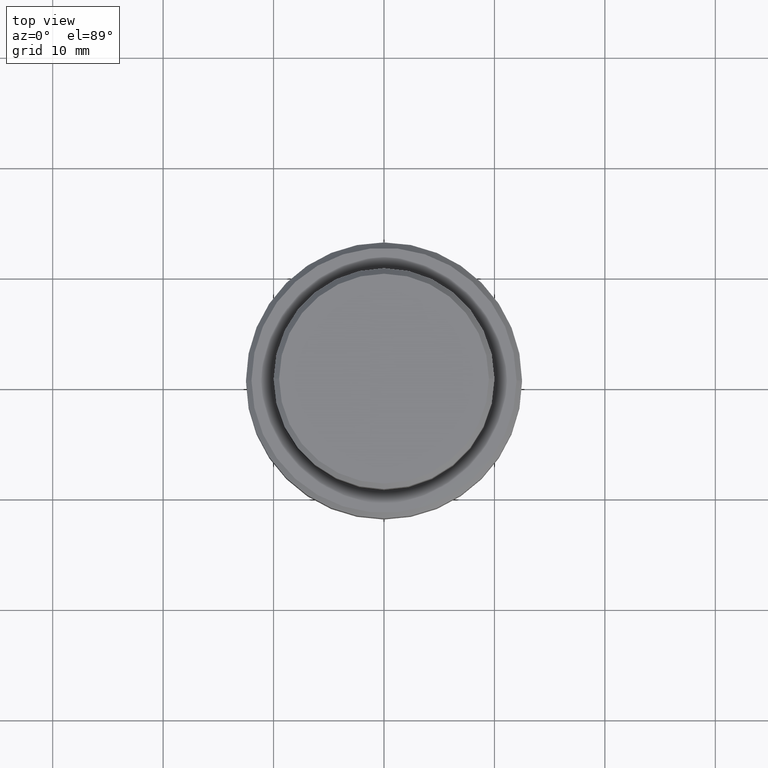
[diagram: clean part render]
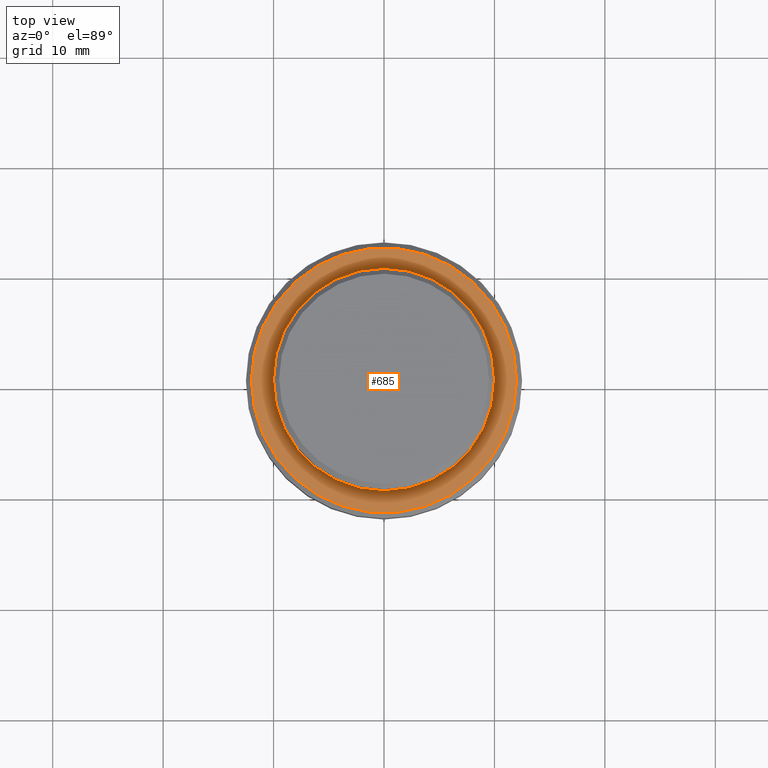
[diagram: same view with one face highlighted and labeled with its STEP entity id]
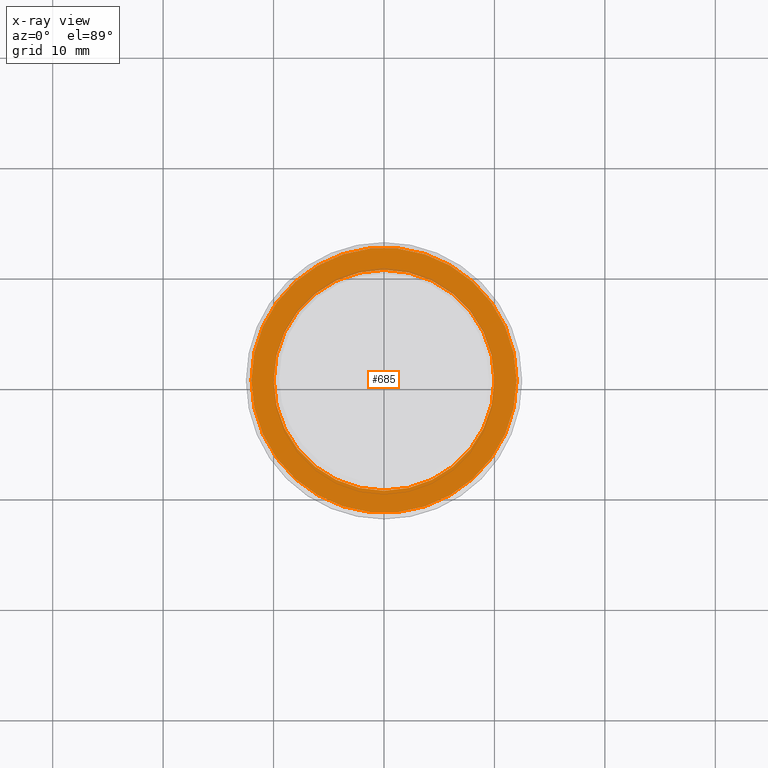
[diagram: x-ray of the same camera — body ghosted, the highlighted face saturated]
A machine part, top view. The second image highlights one B-rep face of the part: STEP entity #685.
The next image is the same camera in x-ray: the body ghosted, the highlighted face saturated — about 2% of this face is hidden behind the body in this view.
In plain terms, the highlighted planar face has unit normal (0, -0, 1).
Its self-contained STEP definition (entity closure, byte-faithful):
#8 = DIRECTION ( 'NONE',  ( 1.000000000000000000, 0.000000000000000000, 0.000000000000000000 ) ) ;
#10 = CIRCLE ( 'NONE', #801, 11.99999999999999645 ) ;
#40 = CIRCLE ( 'NONE', #229, 9.999999999999994671 ) ;
#74 = DIRECTION ( 'NONE',  ( 0.000000000000000000, 0.000000000000000000, -1.000000000000000000 ) ) ;
#77 = DIRECTION ( 'NONE',  ( 1.000000000000000000, 0.000000000000000000, 0.000000000000000000 ) ) ;
#99 = VERTEX_POINT ( 'NONE', #1054 ) ;
#147 = EDGE_CURVE ( 'NONE', #1308, #406, #10, .T. ) ;
#152 = ORIENTED_EDGE ( 'NONE', *, *, #147, .T. ) ;
#222 = CIRCLE ( 'NONE', #288, 9.999999999999994671 ) ;
#229 = AXIS2_PLACEMENT_3D ( 'NONE', #941, #495, #77 ) ;
#267 = CIRCLE ( 'NONE', #444, 11.99999999999999645 ) ;
#288 = AXIS2_PLACEMENT_3D ( 'NONE', #1172, #74, #1164 ) ;
#406 = VERTEX_POINT ( 'NONE', #560 ) ;
#444 = AXIS2_PLACEMENT_3D ( 'NONE', #1025, #1030, #484 ) ;
#453 = AXIS2_PLACEMENT_3D ( 'NONE', #889, #1417, #8 ) ;
#466 = EDGE_CURVE ( 'NONE', #99, #756, #40, .T. ) ;
#484 = DIRECTION ( 'NONE',  ( 1.000000000000000000, 0.000000000000000000, 0.000000000000000000 ) ) ;
#495 = DIRECTION ( 'NONE',  ( 0.000000000000000000, 0.000000000000000000, -1.000000000000000000 ) ) ;
#503 = CARTESIAN_POINT ( 'NONE',  ( 0.000000000000000000, 0.000000000000000000, -9.000000000000001776 ) ) ;
#522 = FACE_OUTER_BOUND ( 'NONE', #875, .T. ) ;
#536 = FACE_BOUND ( 'NONE', #1131, .T. ) ;
#560 = CARTESIAN_POINT ( 'NONE',  ( -11.99999999999999645, 0.000000000000000000, -9.000000000000001776 ) ) ;
#590 = CARTESIAN_POINT ( 'NONE',  ( 11.99999999999999645, 1.500192328955507537E-15, -9.000000000000001776 ) ) ;
#661 = CARTESIAN_POINT ( 'NONE',  ( 9.999999999999994671, 0.000000000000000000, -9.000000000000001776 ) ) ;
#685 = ADVANCED_FACE ( 'NONE', ( #522, #536 ), #976, .T. ) ;
#718 = ORIENTED_EDGE ( 'NONE', *, *, #1317, .T. ) ;
#756 = VERTEX_POINT ( 'NONE', #661 ) ;
#801 = AXIS2_PLACEMENT_3D ( 'NONE', #503, #1272, #1373 ) ;
#875 = EDGE_LOOP ( 'NONE', ( #718, #152 ) ) ;
#889 = CARTESIAN_POINT ( 'NONE',  ( 0.000000000000000000, 9.499999999999994671, -9.000000000000001776 ) ) ;
#941 = CARTESIAN_POINT ( 'NONE',  ( 0.000000000000000000, 0.000000000000000000, -9.000000000000001776 ) ) ;
#976 = PLANE ( 'NONE',  #453 ) ;
#1025 = CARTESIAN_POINT ( 'NONE',  ( 0.000000000000000000, 0.000000000000000000, -9.000000000000001776 ) ) ;
#1030 = DIRECTION ( 'NONE',  ( -0.000000000000000000, -0.000000000000000000, 1.000000000000000000 ) ) ;
#1054 = CARTESIAN_POINT ( 'NONE',  ( -9.999999999999994671, 1.224646799147352665E-15, -9.000000000000001776 ) ) ;
#1131 = EDGE_LOOP ( 'NONE', ( #1328, #1171 ) ) ;
#1164 = DIRECTION ( 'NONE',  ( 1.000000000000000000, 0.000000000000000000, 0.000000000000000000 ) ) ;
#1171 = ORIENTED_EDGE ( 'NONE', *, *, #466, .T. ) ;
#1172 = CARTESIAN_POINT ( 'NONE',  ( 0.000000000000000000, 0.000000000000000000, -9.000000000000001776 ) ) ;
#1272 = DIRECTION ( 'NONE',  ( -0.000000000000000000, -0.000000000000000000, 1.000000000000000000 ) ) ;
#1308 = VERTEX_POINT ( 'NONE', #590 ) ;
#1317 = EDGE_CURVE ( 'NONE', #406, #1308, #267, .T. ) ;
#1328 = ORIENTED_EDGE ( 'NONE', *, *, #1370, .T. ) ;
#1370 = EDGE_CURVE ( 'NONE', #756, #99, #222, .T. ) ;
#1373 = DIRECTION ( 'NONE',  ( 1.000000000000000000, 0.000000000000000000, 0.000000000000000000 ) ) ;
#1417 = DIRECTION ( 'NONE',  ( 0.000000000000000000, -0.000000000000000000, 1.000000000000000000 ) ) ;